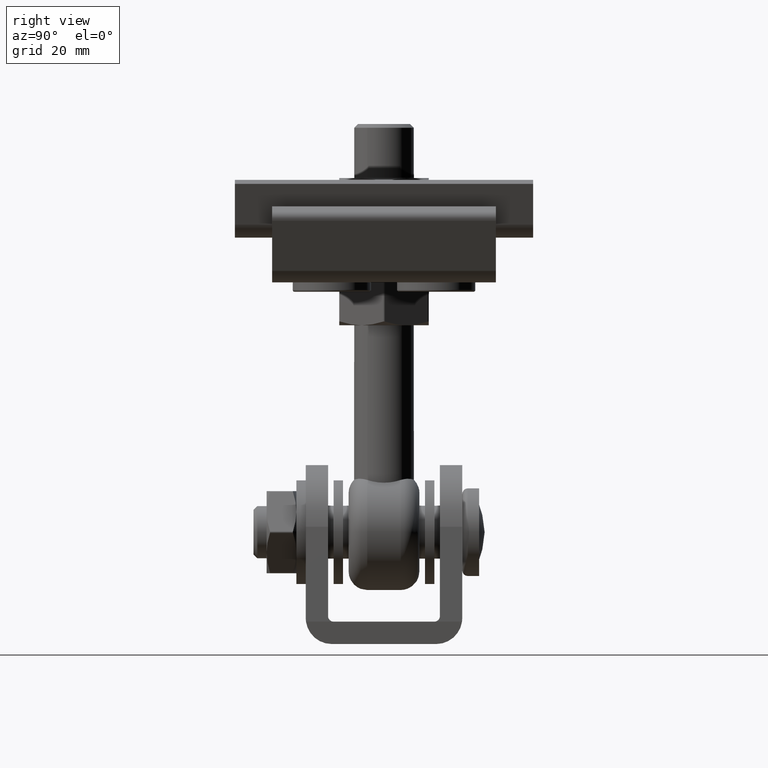
[diagram: clean part render]
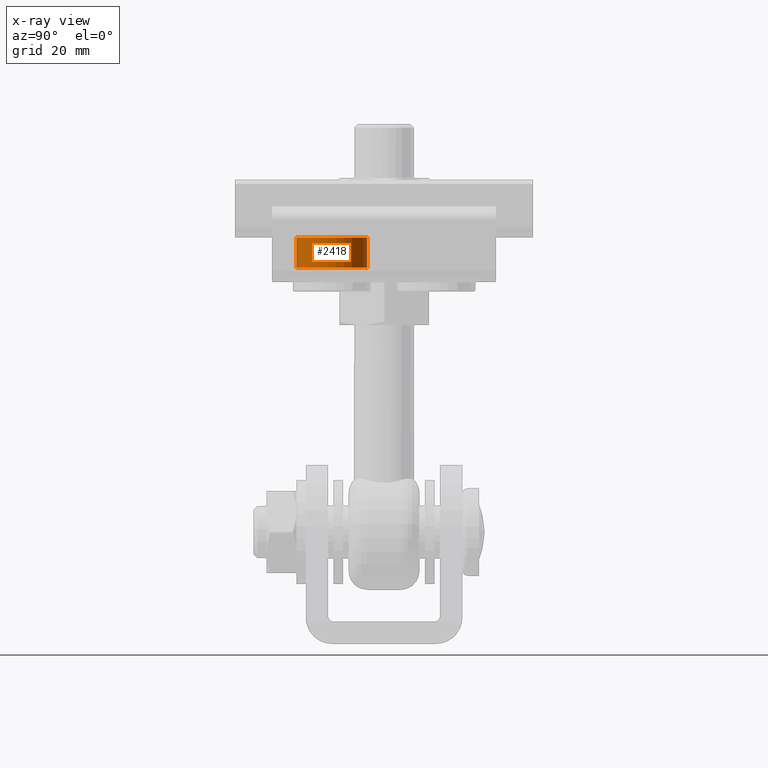
[diagram: x-ray — body ghosted, one internal face saturated and labeled with its STEP entity id]
A machine part, right view, then the same camera in x-ray: the body is ghosted and one INTERNAL B-rep face — a face not visible from any outside direction — is saturated and labeled: STEP entity #2418.
In plain terms, the highlighted cylindrical surface (bore or boss wall) has radius 9.5 mm, axis along (0, -0, 1).
Its self-contained STEP definition (entity closure, byte-faithful):
#1016 = EDGE_LOOP ( 'NONE', ( #11892 ) ) ;
#1201 = CARTESIAN_POINT ( 'NONE',  ( -31.49999999999998579, -13.99999999999998757, -1.499999999999997335 ) ) ;
#2280 = VERTEX_POINT ( 'NONE', #4848 ) ;
#2418 = ADVANCED_FACE ( 'NONE', ( #16530, #7986 ), #11266, .F. ) ;
#2786 = DIRECTION ( 'NONE',  ( 0.000000000000000000, -1.445602896647338917E-16, -1.000000000000000000 ) ) ;
#3153 = DIRECTION ( 'NONE',  ( 0.000000000000000000, -1.000000000000000000, 1.826024711554534406E-16 ) ) ;
#3825 = VERTEX_POINT ( 'NONE', #10577 ) ;
#4494 = EDGE_CURVE ( 'NONE', #3825, #3825, #15503, .T. ) ;
#4848 = CARTESIAN_POINT ( 'NONE',  ( -31.49999999999998579, -23.49999999999998579, -1.499999999999996225 ) ) ;
#7698 = DIRECTION ( 'NONE',  ( -0.000000000000000000, 1.445602896647338917E-16, 1.000000000000000000 ) ) ;
#7986 = FACE_OUTER_BOUND ( 'NONE', #12877, .T. ) ;
#8148 = AXIS2_PLACEMENT_3D ( 'NONE', #19312, #17425, #3153 ) ;
#8261 = AXIS2_PLACEMENT_3D ( 'NONE', #1201, #7698, #20587 ) ;
#9601 = CIRCLE ( 'NONE', #8261, 9.499999999999998224 ) ;
#9913 = EDGE_CURVE ( 'NONE', #2280, #2280, #9601, .T. ) ;
#10577 = CARTESIAN_POINT ( 'NONE',  ( -31.49999999999998579, -23.49999999999998224, 6.500000000000007994 ) ) ;
#11266 = CYLINDRICAL_SURFACE ( 'NONE', #15026, 9.499999999999998224 ) ;
#11892 = ORIENTED_EDGE ( 'NONE', *, *, #4494, .T. ) ;
#12877 = EDGE_LOOP ( 'NONE', ( #15377 ) ) ;
#15026 = AXIS2_PLACEMENT_3D ( 'NONE', #20539, #2786, #15592 ) ;
#15377 = ORIENTED_EDGE ( 'NONE', *, *, #9913, .F. ) ;
#15503 = CIRCLE ( 'NONE', #8148, 9.499999999999996447 ) ;
#15592 = DIRECTION ( 'NONE',  ( 0.000000000000000000, -1.000000000000000000, 1.369518533665900558E-16 ) ) ;
#16530 = FACE_OUTER_BOUND ( 'NONE', #1016, .T. ) ;
#17425 = DIRECTION ( 'NONE',  ( -0.000000000000000000, 1.445602896647338917E-16, 1.000000000000000000 ) ) ;
#19312 = CARTESIAN_POINT ( 'NONE',  ( -31.49999999999998579, -13.99999999999998579, 6.500000000000006217 ) ) ;
#20539 = CARTESIAN_POINT ( 'NONE',  ( -31.49999999999998579, -13.99999999999998757, -1.499999999999998890 ) ) ;
#20587 = DIRECTION ( 'NONE',  ( 0.000000000000000000, -1.000000000000000000, 1.369518533665900558E-16 ) ) ;